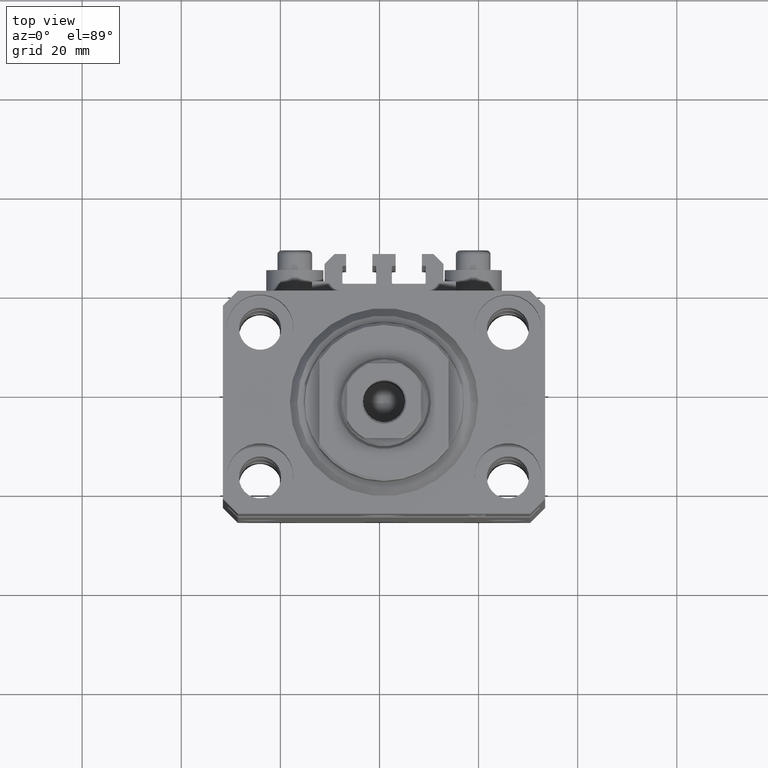
[diagram: clean part render]
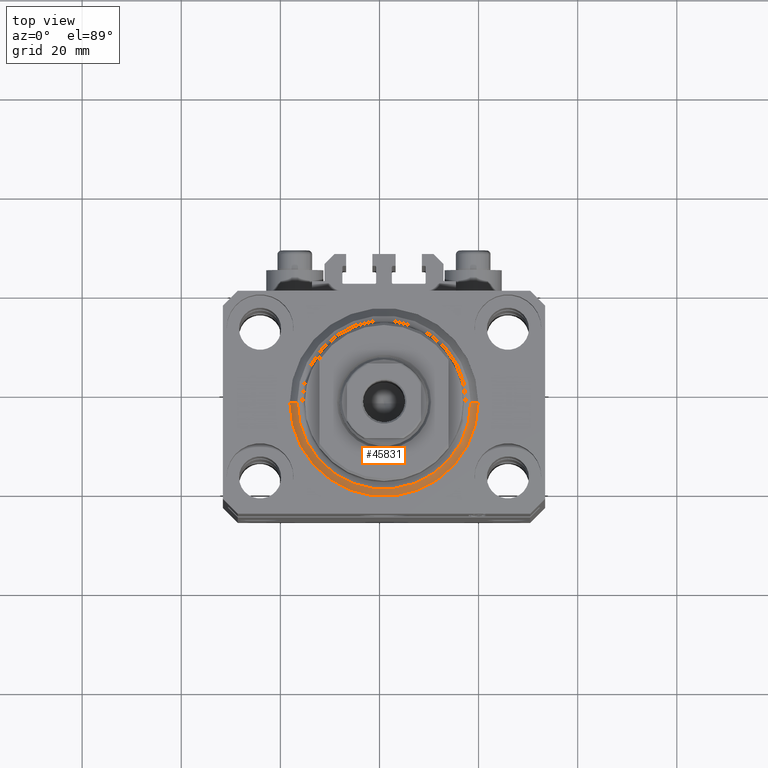
[diagram: same view with one face highlighted and labeled with its STEP entity id]
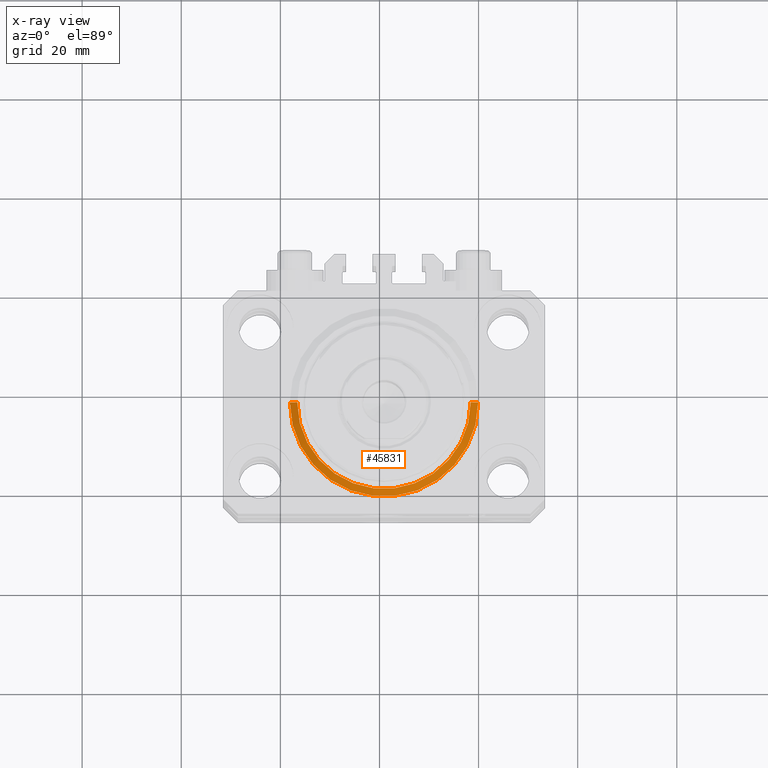
[diagram: x-ray of the same camera — body ghosted, the highlighted face saturated]
A machine part, top view. The second image highlights one B-rep face of the part: STEP entity #45831.
The next image is the same camera in x-ray: the body ghosted, the highlighted face saturated — about 0% of this face is hidden behind the body in this view.
In plain terms, the highlighted conical surface has half-angle 45 deg.
Its self-contained STEP definition (entity closure, byte-faithful):
#1876 = VERTEX_POINT ( 'NONE', #33393 ) ;
#2392 = EDGE_LOOP ( 'NONE', ( #39131, #37458, #13140, #25010 ) ) ;
#2756 = CARTESIAN_POINT ( 'NONE',  ( -19.00000000000000000, 2.326828918379970970E-15, 1.500000000000004885 ) ) ;
#4686 = LINE ( 'NONE', #41995, #12904 ) ;
#6310 = CARTESIAN_POINT ( 'NONE',  ( -19.00000000000000000, 0.000000000000000000, 1.500000000000004885 ) ) ;
#9607 = LINE ( 'NONE', #2756, #46500 ) ;
#10094 = CARTESIAN_POINT ( 'NONE',  ( 0.000000000000000000, 0.000000000000000000, 0.000000000000000000 ) ) ;
#10390 = DIRECTION ( 'NONE',  ( 1.000000000000000000, 0.000000000000000000, 0.000000000000000000 ) ) ;
#12904 = VECTOR ( 'NONE', #34450, 1000.000000000000000 ) ;
#13132 = VERTEX_POINT ( 'NONE', #28210 ) ;
#13140 = ORIENTED_EDGE ( 'NONE', *, *, #17689, .T. ) ;
#13147 = CIRCLE ( 'NONE', #40429, 19.00000000000000000 ) ;
#13190 = AXIS2_PLACEMENT_3D ( 'NONE', #10094, #24982, #32529 ) ;
#15196 = DIRECTION ( 'NONE',  ( 1.000000000000000000, 0.000000000000000000, 0.000000000000000000 ) ) ;
#17689 = EDGE_CURVE ( 'NONE', #30650, #13132, #4686, .T. ) ;
#20608 = EDGE_CURVE ( 'NONE', #1876, #32435, #9607, .T. ) ;
#23327 = CARTESIAN_POINT ( 'NONE',  ( 17.49999999999999289, 0.000000000000000000, 0.000000000000000000 ) ) ;
#24982 = DIRECTION ( 'NONE',  ( -0.000000000000000000, -0.000000000000000000, -1.000000000000000000 ) ) ;
#25010 = ORIENTED_EDGE ( 'NONE', *, *, #38777, .F. ) ;
#25670 = CIRCLE ( 'NONE', #13190, 17.49999999999999289 ) ;
#28200 = AXIS2_PLACEMENT_3D ( 'NONE', #41298, #37404, #15196 ) ;
#28210 = CARTESIAN_POINT ( 'NONE',  ( 19.00000000000000000, 2.326828918379970970E-15, 1.500000000000004885 ) ) ;
#29854 = FACE_OUTER_BOUND ( 'NONE', #2392, .T. ) ;
#30650 = VERTEX_POINT ( 'NONE', #23327 ) ;
#32099 = CONICAL_SURFACE ( 'NONE', #28200, 19.00000000000000000, 0.7853981633974492782 ) ;
#32435 = VERTEX_POINT ( 'NONE', #6310 ) ;
#32528 = DIRECTION ( 'NONE',  ( -0.7071067811865483499, 8.659560562354943952E-17, 0.7071067811865467956 ) ) ;
#32529 = DIRECTION ( 'NONE',  ( 1.000000000000000000, 0.000000000000000000, 0.000000000000000000 ) ) ;
#33393 = CARTESIAN_POINT ( 'NONE',  ( -17.49999999999999289, 2.234980408443919215E-15, 0.000000000000000000 ) ) ;
#34450 = DIRECTION ( 'NONE',  ( 0.7071067811865483499, 0.000000000000000000, 0.7071067811865467956 ) ) ;
#37404 = DIRECTION ( 'NONE',  ( -0.000000000000000000, -0.000000000000000000, 1.000000000000000000 ) ) ;
#37458 = ORIENTED_EDGE ( 'NONE', *, *, #39125, .F. ) ;
#38777 = EDGE_CURVE ( 'NONE', #32435, #13132, #13147, .T. ) ;
#39125 = EDGE_CURVE ( 'NONE', #30650, #1876, #25670, .T. ) ;
#39131 = ORIENTED_EDGE ( 'NONE', *, *, #20608, .F. ) ;
#40386 = CARTESIAN_POINT ( 'NONE',  ( 0.000000000000000000, 0.000000000000000000, 1.500000000000004885 ) ) ;
#40429 = AXIS2_PLACEMENT_3D ( 'NONE', #40386, #47697, #10390 ) ;
#41298 = CARTESIAN_POINT ( 'NONE',  ( 0.000000000000000000, 0.000000000000000000, 1.500000000000004885 ) ) ;
#41995 = CARTESIAN_POINT ( 'NONE',  ( 19.00000000000000000, 0.000000000000000000, 1.500000000000004885 ) ) ;
#45831 = ADVANCED_FACE ( 'NONE', ( #29854 ), #32099, .T. ) ;
#46500 = VECTOR ( 'NONE', #32528, 1000.000000000000000 ) ;
#47697 = DIRECTION ( 'NONE',  ( -0.000000000000000000, -0.000000000000000000, 1.000000000000000000 ) ) ;